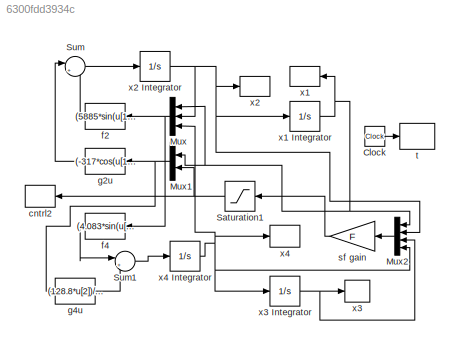
MODEL slx_6300fdd3934c
KIND model
CONFIG AbsTol = auto
CONFIG FixedStep = 0.001
CONFIG MaxStep = auto
CONFIG MinStep = auto
CONFIG RelTol = 1e-3
CONFIG SampleTimeConstraint = Unconstrained
CONFIG Solver = ode3
CONFIG SolverMode = Auto
CONFIG SolverName = ode3
CONFIG StartTime = 0.0
CONFIG StopTime = 5
BLOCK [Clock] Clock
BLOCK [Mux] Mux
  DisplayOption = bar
  Inputs = 3
  Ports = [3, 1]
BLOCK [Mux] Mux1
  DisplayOption = bar
  Inputs = 2
  Ports = [2, 1]
BLOCK [Mux] Mux2
  DisplayOption = bar
  Ports = [4, 1]
BLOCK [Saturate] Saturation1
  InputPortMap = u0
  LowerLimit = -u_sat
  Ports = [1, 1]
  UpperLimit = u_sat
BLOCK [Sum] Sum
  IconShape = round
  InputSameDT = off
  Inputs = |++
  OutDataTypeStr = Inherit: Inherit via internal rule
  Ports = [2, 1]
  SaturateOnIntegerOverflow = off
BLOCK [Sum] Sum1
  IconShape = round
  InputSameDT = off
  Inputs = |++
  OutDataTypeStr = Inherit: Inherit via internal rule
  Ports = [2, 1]
  SaturateOnIntegerOverflow = off
BLOCK [ToWorkspace] cntrl2
  MaxDataPoints = inf
  Ports = [1]
  SampleTime = -1
  VariableName = cntrl
BLOCK [Fcn] f2
  Expr = (5885*sin(u[1])-10*sin(u[1])*cos(u[1])*u[2]^2-378.8*u[2] +79.25*u[3]*cos(u[1]))/( 244-10*cos(u[1])^2)
BLOCK [Fcn] f4
  Expr = (4.083*sin(u[1])*u[2]^2-32.2*u[3]- 98.5*sin(u[1])*cos(u[1])+6.34*u[2]*cos(u[1]))/( 244-10*cos(u[1])^2)
BLOCK [Fcn] g2u
  Expr = (-317*cos(u[1])*u[2])/( 244-10*cos(u[1])^2)
BLOCK [Fcn] g4u
  Expr = (128.8*u[2])/(244-10*cos(u[1])^2)
BLOCK [Gain] sf gain
  Gain = F
  Multiplication = Matrix(K*u)
  OutDataTypeStr = Inherit: Inherit via internal rule
  ParamDataTypeStr = Inherit: Inherit via internal rule
  SaturateOnIntegerOverflow = off
BLOCK [ToWorkspace] t
  MaxDataPoints = inf
  Ports = [1]
  SampleTime = -1
  VariableName = t
BLOCK [ToWorkspace] x1
  MaxDataPoints = inf
  Ports = [1]
  SampleTime = -1
  VariableName = x1
BLOCK [Integrator] x1 Integrator
  InitialCondition = x1_0
  Ports = [1, 1]
BLOCK [ToWorkspace] x2
  MaxDataPoints = inf
  Ports = [1]
  SampleTime = -1
  VariableName = x2
BLOCK [Integrator] x2 Integrator
  Ports = [1, 1]
BLOCK [ToWorkspace] x3
  MaxDataPoints = inf
  Ports = [1]
  SampleTime = -1
  VariableName = x3
BLOCK [Integrator] x3 Integrator
  InitialCondition = x3_0
  Ports = [1, 1]
BLOCK [ToWorkspace] x4
  MaxDataPoints = inf
  Ports = [1]
  SampleTime = -1
  VariableName = x4
BLOCK [Integrator] x4 Integrator
  Ports = [1, 1]
LINE Clock:1 -> t:1
NET Mux1:1 -> g2u:1, g4u:1
LINE Mux2:1 -> sf gain:1
NET Mux:1 -> f2:1, f4:1
NET Saturation1:1 -> Mux1:2, cntrl2:1
LINE Sum1:1 -> x4 Integrator:1
LINE Sum:1 -> x2 Integrator:1
LINE f2:1 -> Sum:2
LINE f4:1 -> Sum1:1
LINE g2u:1 -> Sum:1
LINE g4u:1 -> Sum1:2
LINE sf gain:1 -> Saturation1:1
NET x1 Integrator:1 -> Mux1:1, Mux2:1, Mux:1, x1:1
NET x2 Integrator:1 -> Mux2:2, Mux:2, x1 Integrator:1, x2:1
NET x3 Integrator:1 -> Mux2:3, x3:1
NET x4 Integrator:1 -> Mux2:4, Mux:3, x3 Integrator:1, x4:1
note: NET lines group one-source signal fan-out (src -> all destinations, sorted); 1:1 wires keep LINE
